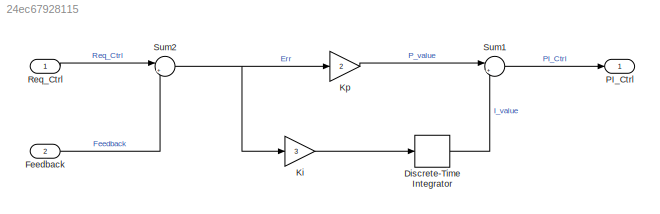
MODEL slx_24ec67928115
KIND model
CONFIG AbsTol = auto
CONFIG EnableMultiTasking = off
CONFIG FixedStep = 0.001
CONFIG MaxStep = auto
CONFIG MinStep = auto
CONFIG RelTol = 1e-3
CONFIG SampleTimeConstraint = Unconstrained
CONFIG SolverName = FixedStepAuto
CONFIG StartTime = 0.0
CONFIG StopTime = 10.0
BLOCK [DiscreteIntegrator] Discrete-Time Integrator
  ICPrevOutput = DiscIntNeverNeededParam
  ICPrevScaledInput = DiscIntNeverNeededParam
  InitialConditionSetting = Auto
  Ports = [1, 1]
  SampleTime = -1
BLOCK [Inport] Feedback
  Port = 2
  PortDimensions = 5
BLOCK [Gain] Ki
  Gain = 3
BLOCK [Gain] Kp
  Gain = 2
BLOCK [Outport] PI_Ctrl
BLOCK [Inport] Req_Ctrl
BLOCK [Sum] Sum1
  Inputs = |++
  Ports = [2, 1]
BLOCK [Sum] Sum2
  Inputs = |+-
  Ports = [2, 1]
LINE Discrete-Time Integrator:1 -> Sum1:2
LINE Feedback:1 -> Sum2:2
LINE Ki:1 -> Discrete-Time Integrator:1
LINE Kp:1 -> Sum1:1
LINE Req_Ctrl:1 -> Sum2:1
LINE Sum1:1 -> PI_Ctrl:1
NET Sum2:1 -> Ki:1, Kp:1
note: NET lines group one-source signal fan-out (src -> all destinations, sorted); 1:1 wires keep LINE
